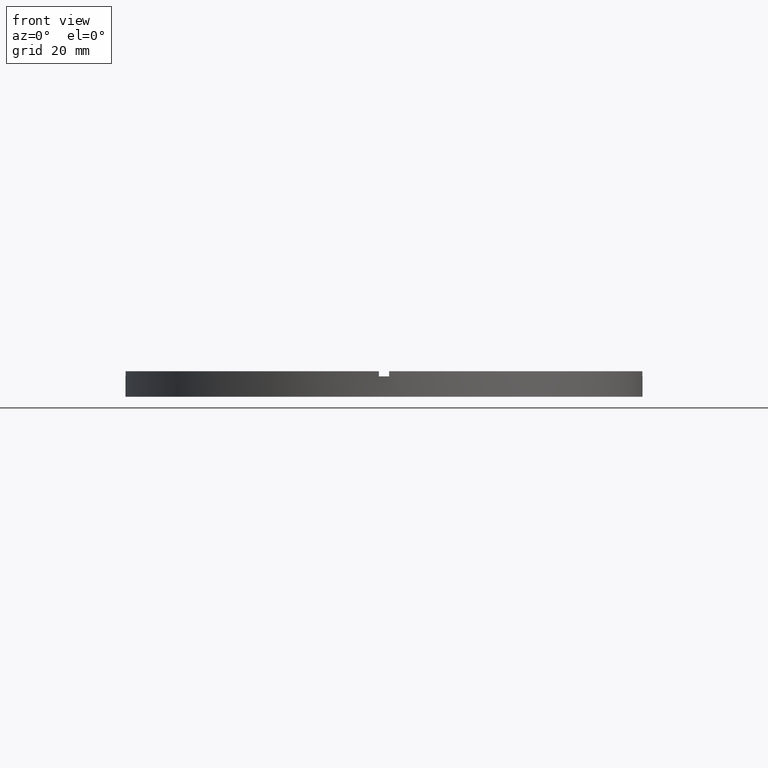
[diagram: clean part render]
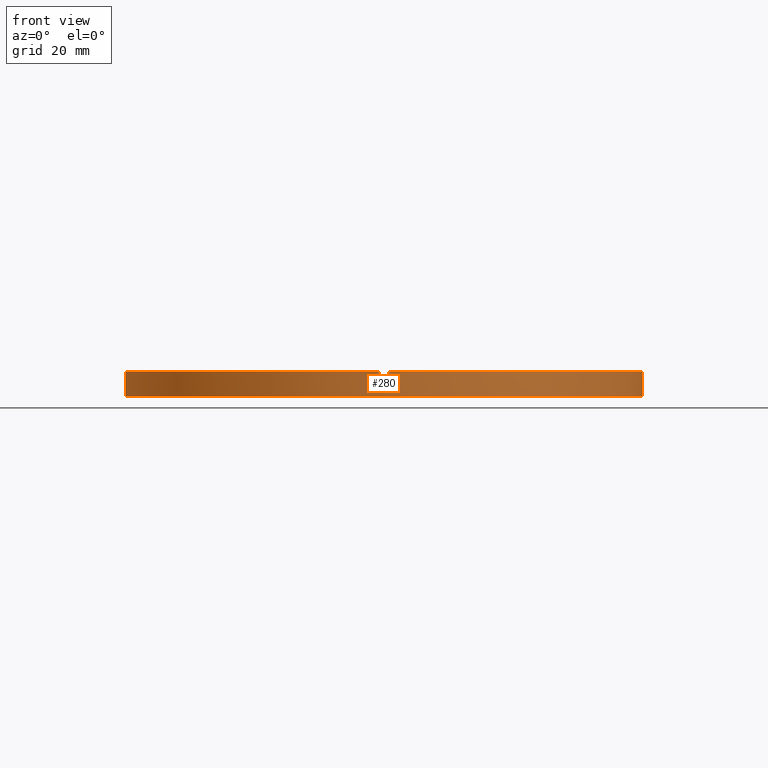
[diagram: same view with one face highlighted and labeled with its STEP entity id]
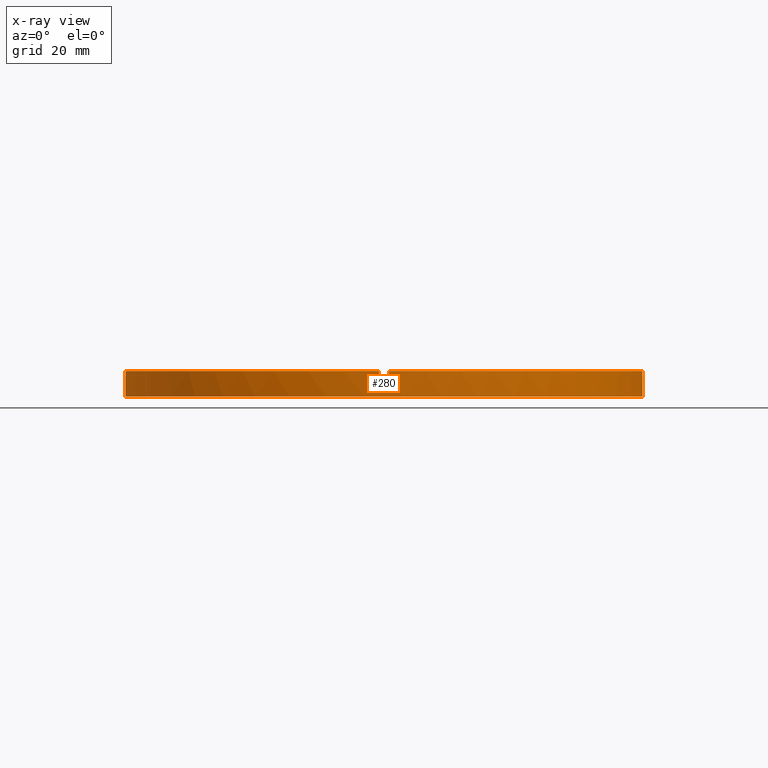
[diagram: x-ray of the same camera — body ghosted, the highlighted face saturated]
A machine part, front view. The second image highlights one B-rep face of the part: STEP entity #280.
The next image is the same camera in x-ray: the body ghosted, the highlighted face saturated — about 0% of this face is hidden behind the body in this view.
In plain terms, the highlighted cylindrical surface (partial cylindrical patch) has radius 50.5 mm, axis along (-0, -0, -1).
Its self-contained STEP definition (entity closure, byte-faithful):
#2 = CARTESIAN_POINT ( 'NONE',  ( -50.50000000000000000, 0.000000000000000000, 0.000000000000000000 ) ) ;
#4 = DIRECTION ( 'NONE',  ( -0.000000000000000000, -0.000000000000000000, -1.000000000000000000 ) ) ;
#5 = CARTESIAN_POINT ( 'NONE',  ( -50.49009803912050387, -1.000000000000031752, 5.000000000000000000 ) ) ;
#13 = CARTESIAN_POINT ( 'NONE',  ( 0.9999999999998434586, -50.49009803912051098, 5.000000000000000000 ) ) ;
#17 = AXIS2_PLACEMENT_3D ( 'NONE', #48, #778, #530 ) ;
#22 = ORIENTED_EDGE ( 'NONE', *, *, #31, .T. ) ;
#24 = ORIENTED_EDGE ( 'NONE', *, *, #151, .T. ) ;
#25 = EDGE_CURVE ( 'NONE', #592, #708, #354, .T. ) ;
#31 = EDGE_CURVE ( 'NONE', #336, #454, #404, .T. ) ;
#38 = ORIENTED_EDGE ( 'NONE', *, *, #522, .F. ) ;
#41 = CARTESIAN_POINT ( 'NONE',  ( 0.000000000000000000, 0.000000000000000000, 5.000000000000000000 ) ) ;
#46 = AXIS2_PLACEMENT_3D ( 'NONE', #50, #595, #64 ) ;
#48 = CARTESIAN_POINT ( 'NONE',  ( 0.000000000000000000, 0.000000000000000000, 4.000000000000000000 ) ) ;
#50 = CARTESIAN_POINT ( 'NONE',  ( 0.000000000000000000, 0.000000000000000000, 5.000000000000000000 ) ) ;
#64 = DIRECTION ( 'NONE',  ( 1.000000000000000000, 0.000000000000000000, 0.000000000000000000 ) ) ;
#80 = CARTESIAN_POINT ( 'NONE',  ( 50.50000000000000000, 6.184466335694133659E-15, 0.000000000000000000 ) ) ;
#84 = EDGE_CURVE ( 'NONE', #336, #604, #141, .T. ) ;
#95 = CARTESIAN_POINT ( 'NONE',  ( -50.49009803912050387, -1.000000000000031752, 5.000000000000000000 ) ) ;
#96 = EDGE_CURVE ( 'NONE', #708, #591, #204, .T. ) ;
#98 = ORIENTED_EDGE ( 'NONE', *, *, #84, .F. ) ;
#104 = ORIENTED_EDGE ( 'NONE', *, *, #285, .F. ) ;
#107 = CARTESIAN_POINT ( 'NONE',  ( 0.000000000000000000, 0.000000000000000000, 4.000000000000000000 ) ) ;
#116 = ORIENTED_EDGE ( 'NONE', *, *, #423, .T. ) ;
#119 = ORIENTED_EDGE ( 'NONE', *, *, #96, .T. ) ;
#141 = CIRCLE ( 'NONE', #665, 50.50000000000000000 ) ;
#149 = DIRECTION ( 'NONE',  ( -1.000000000000000000, 0.000000000000000000, 0.000000000000000000 ) ) ;
#151 = EDGE_CURVE ( 'NONE', #180, #625, #470, .T. ) ;
#157 = CARTESIAN_POINT ( 'NONE',  ( 50.49009803912050387, -1.000000000000154987, 5.000000000000000000 ) ) ;
#161 = CARTESIAN_POINT ( 'NONE',  ( -50.50000000000000000, 0.000000000000000000, 4.000000000000000000 ) ) ;
#166 = DIRECTION ( 'NONE',  ( -0.000000000000000000, -0.000000000000000000, -1.000000000000000000 ) ) ;
#170 = CIRCLE ( 'NONE', #46, 50.50000000000000000 ) ;
#177 = DIRECTION ( 'NONE',  ( 0.000000000000000000, 0.000000000000000000, 1.000000000000000000 ) ) ;
#180 = VERTEX_POINT ( 'NONE', #579 ) ;
#204 = CIRCLE ( 'NONE', #352, 50.50000000000000000 ) ;
#214 = CIRCLE ( 'NONE', #17, 50.50000000000000000 ) ;
#216 = CARTESIAN_POINT ( 'NONE',  ( 50.49009803912050387, -1.000000000000154987, 4.000000000000000000 ) ) ;
#219 = LINE ( 'NONE', #95, #222 ) ;
#222 = VECTOR ( 'NONE', #166, 1000.000000000000000 ) ;
#225 = FACE_OUTER_BOUND ( 'NONE', #381, .T. ) ;
#226 = VECTOR ( 'NONE', #272, 1000.000000000000000 ) ;
#241 = CYLINDRICAL_SURFACE ( 'NONE', #515, 50.50000000000000000 ) ;
#242 = DIRECTION ( 'NONE',  ( 0.000000000000000000, 0.000000000000000000, 1.000000000000000000 ) ) ;
#248 = DIRECTION ( 'NONE',  ( 1.000000000000000000, 0.000000000000000000, 0.000000000000000000 ) ) ;
#249 = DIRECTION ( 'NONE',  ( -0.000000000000000000, -0.000000000000000000, -1.000000000000000000 ) ) ;
#253 = VECTOR ( 'NONE', #319, 1000.000000000000000 ) ;
#254 = LINE ( 'NONE', #327, #253 ) ;
#272 = DIRECTION ( 'NONE',  ( 0.000000000000000000, 0.000000000000000000, 1.000000000000000000 ) ) ;
#280 = ADVANCED_FACE ( 'NONE', ( #225 ), #241, .T. ) ;
#284 = CARTESIAN_POINT ( 'NONE',  ( 0.9999999999998434586, -50.49009803912051098, 5.000000000000000000 ) ) ;
#285 = EDGE_CURVE ( 'NONE', #180, #388, #214, .T. ) ;
#286 = DIRECTION ( 'NONE',  ( 1.000000000000000000, 0.000000000000000000, 0.000000000000000000 ) ) ;
#293 = DIRECTION ( 'NONE',  ( 0.000000000000000000, 0.000000000000000000, 1.000000000000000000 ) ) ;
#301 = EDGE_CURVE ( 'NONE', #592, #616, #729, .T. ) ;
#303 = DIRECTION ( 'NONE',  ( 0.000000000000000000, 0.000000000000000000, 1.000000000000000000 ) ) ;
#304 = ORIENTED_EDGE ( 'NONE', *, *, #742, .F. ) ;
#313 = DIRECTION ( 'NONE',  ( -0.000000000000000000, -0.000000000000000000, -1.000000000000000000 ) ) ;
#319 = DIRECTION ( 'NONE',  ( -0.000000000000000000, -0.000000000000000000, -1.000000000000000000 ) ) ;
#327 = CARTESIAN_POINT ( 'NONE',  ( 50.50000000000000000, 6.184466335694133659E-15, 5.000000000000000000 ) ) ;
#336 = VERTEX_POINT ( 'NONE', #216 ) ;
#337 = DIRECTION ( 'NONE',  ( 1.000000000000000000, 0.000000000000000000, 0.000000000000000000 ) ) ;
#352 = AXIS2_PLACEMENT_3D ( 'NONE', #632, #242, #286 ) ;
#354 = LINE ( 'NONE', #725, #621 ) ;
#370 = CARTESIAN_POINT ( 'NONE',  ( 0.000000000000000000, 0.000000000000000000, 5.000000000000000000 ) ) ;
#381 = EDGE_LOOP ( 'NONE', ( #38, #98, #22, #639, #586, #104, #24, #304, #116, #389, #596, #119 ) ) ;
#388 = VERTEX_POINT ( 'NONE', #666 ) ;
#389 = ORIENTED_EDGE ( 'NONE', *, *, #301, .F. ) ;
#401 = EDGE_CURVE ( 'NONE', #599, #388, #723, .T. ) ;
#404 = LINE ( 'NONE', #717, #651 ) ;
#409 = AXIS2_PLACEMENT_3D ( 'NONE', #370, #303, #663 ) ;
#423 = EDGE_CURVE ( 'NONE', #711, #616, #219, .T. ) ;
#438 = CARTESIAN_POINT ( 'NONE',  ( -1.000000000000156541, -50.49009803912050387, 5.000000000000000000 ) ) ;
#454 = VERTEX_POINT ( 'NONE', #157 ) ;
#470 = LINE ( 'NONE', #438, #226 ) ;
#490 = VECTOR ( 'NONE', #313, 1000.000000000000000 ) ;
#496 = AXIS2_PLACEMENT_3D ( 'NONE', #583, #293, #337 ) ;
#515 = AXIS2_PLACEMENT_3D ( 'NONE', #41, #249, #149 ) ;
#522 = EDGE_CURVE ( 'NONE', #604, #591, #254, .T. ) ;
#527 = CARTESIAN_POINT ( 'NONE',  ( 50.50000000000000000, 6.184466335694133659E-15, 4.000000000000000000 ) ) ;
#530 = DIRECTION ( 'NONE',  ( 1.000000000000000000, 0.000000000000000000, 0.000000000000000000 ) ) ;
#561 = CARTESIAN_POINT ( 'NONE',  ( -50.49009803912050387, -1.000000000000031752, 4.000000000000000000 ) ) ;
#563 = CARTESIAN_POINT ( 'NONE',  ( -1.000000000000156541, -50.49009803912050387, 5.000000000000000000 ) ) ;
#579 = CARTESIAN_POINT ( 'NONE',  ( -1.000000000000156541, -50.49009803912050387, 4.000000000000000000 ) ) ;
#583 = CARTESIAN_POINT ( 'NONE',  ( 0.000000000000000000, 0.000000000000000000, 4.000000000000000000 ) ) ;
#586 = ORIENTED_EDGE ( 'NONE', *, *, #401, .T. ) ;
#591 = VERTEX_POINT ( 'NONE', #80 ) ;
#592 = VERTEX_POINT ( 'NONE', #161 ) ;
#595 = DIRECTION ( 'NONE',  ( 0.000000000000000000, 0.000000000000000000, 1.000000000000000000 ) ) ;
#596 = ORIENTED_EDGE ( 'NONE', *, *, #25, .T. ) ;
#599 = VERTEX_POINT ( 'NONE', #284 ) ;
#604 = VERTEX_POINT ( 'NONE', #527 ) ;
#616 = VERTEX_POINT ( 'NONE', #561 ) ;
#621 = VECTOR ( 'NONE', #4, 1000.000000000000000 ) ;
#625 = VERTEX_POINT ( 'NONE', #563 ) ;
#632 = CARTESIAN_POINT ( 'NONE',  ( 0.000000000000000000, 0.000000000000000000, 0.000000000000000000 ) ) ;
#639 = ORIENTED_EDGE ( 'NONE', *, *, #777, .F. ) ;
#651 = VECTOR ( 'NONE', #782, 1000.000000000000000 ) ;
#663 = DIRECTION ( 'NONE',  ( 1.000000000000000000, 0.000000000000000000, 0.000000000000000000 ) ) ;
#665 = AXIS2_PLACEMENT_3D ( 'NONE', #107, #177, #248 ) ;
#666 = CARTESIAN_POINT ( 'NONE',  ( 0.9999999999998434586, -50.49009803912051098, 4.000000000000000000 ) ) ;
#679 = CIRCLE ( 'NONE', #409, 50.50000000000000000 ) ;
#708 = VERTEX_POINT ( 'NONE', #2 ) ;
#711 = VERTEX_POINT ( 'NONE', #5 ) ;
#717 = CARTESIAN_POINT ( 'NONE',  ( 50.49009803912050387, -1.000000000000154987, 5.000000000000000000 ) ) ;
#723 = LINE ( 'NONE', #13, #490 ) ;
#725 = CARTESIAN_POINT ( 'NONE',  ( -50.50000000000000000, 0.000000000000000000, 5.000000000000000000 ) ) ;
#729 = CIRCLE ( 'NONE', #496, 50.50000000000000000 ) ;
#742 = EDGE_CURVE ( 'NONE', #711, #625, #170, .T. ) ;
#777 = EDGE_CURVE ( 'NONE', #599, #454, #679, .T. ) ;
#778 = DIRECTION ( 'NONE',  ( -0.000000000000000000, 0.000000000000000000, 1.000000000000000000 ) ) ;
#782 = DIRECTION ( 'NONE',  ( 0.000000000000000000, 0.000000000000000000, 1.000000000000000000 ) ) ;